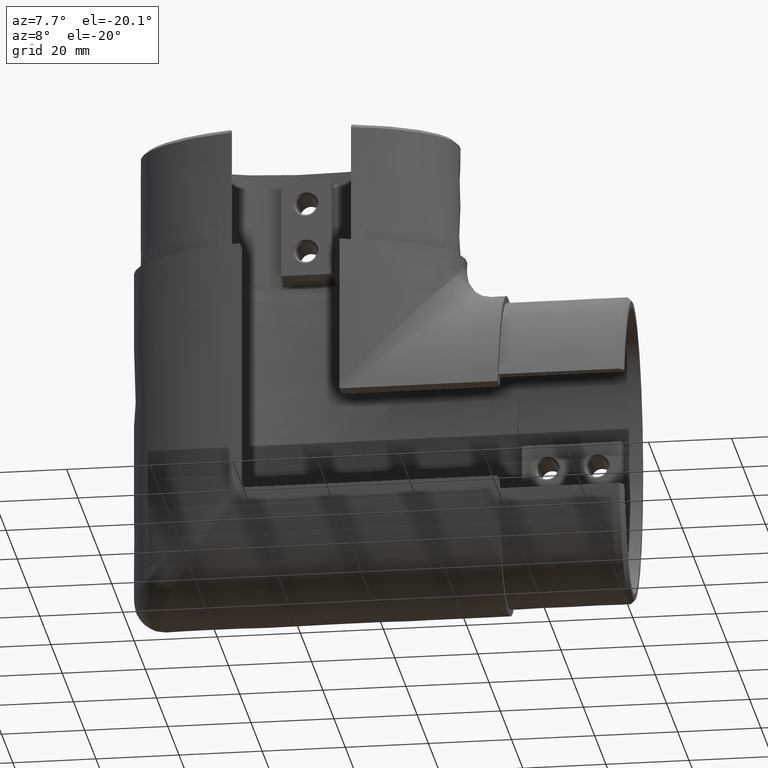
[diagram: clean part render]
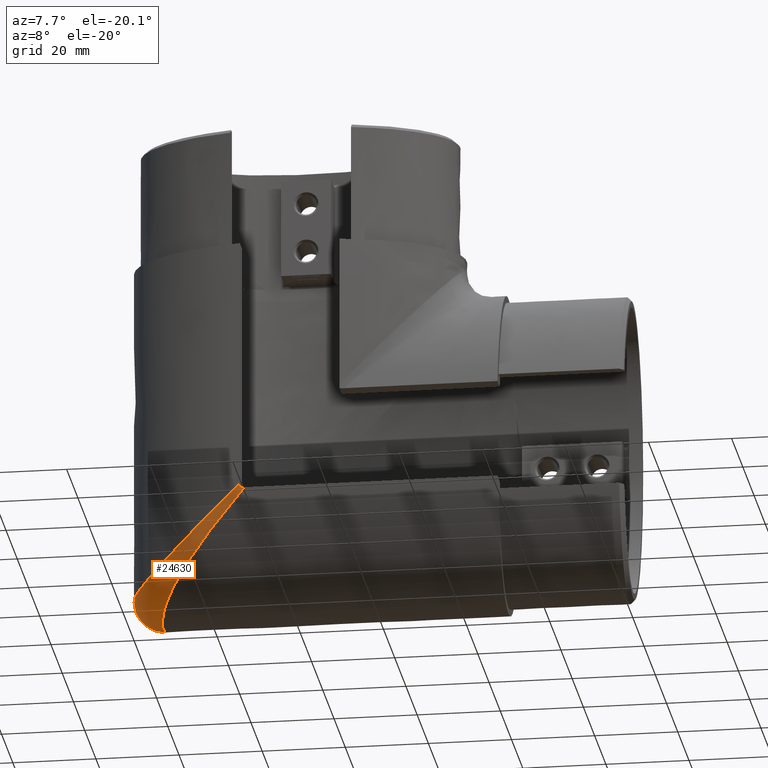
[diagram: same view with one face highlighted and labeled with its STEP entity id]
A machine part, auxiliary view. The second image highlights one B-rep face of the part: STEP entity #24630.
In plain terms, the highlighted face is a freeform B-spline surface patch.
Its self-contained STEP definition (entity closure, byte-faithful):
#169 = CARTESIAN_POINT ( 'NONE',  ( -29.37160239750422264, 9.523425862999179259, -83.77068820335664157 ) ) ;
#270 = CARTESIAN_POINT ( 'NONE',  ( -17.94219491825039725, 2.705763800402108732, -69.91868571629679252 ) ) ;
#393 = CARTESIAN_POINT ( 'NONE',  ( -33.23092805219116741, 32.15215143814275933, -83.23092805219891943 ) ) ;
#476 = CARTESIAN_POINT ( 'NONE',  ( -32.37455045395733322, 26.12924211060121138, -88.51979547736051757 ) ) ;
#497 = CARTESIAN_POINT ( 'NONE',  ( 1.850348682839927049E-14, 41.13217401979662213, -49.99999999999998579 ) ) ;
#580 = CARTESIAN_POINT ( 'NONE',  ( -0.3648939090101966931, 41.13139950329173899, -50.40097201730318233 ) ) ;
#601 = CARTESIAN_POINT ( 'NONE',  ( -30.16572828181829991, 30.62771880413700387, -84.89585378410696137 ) ) ;
#709 = CARTESIAN_POINT ( 'NONE',  ( -34.51139967667753439, 30.97050898847774647, -79.89678507337249869 ) ) ;
#811 = CARTESIAN_POINT ( 'NONE',  ( -17.62922851760139054, 38.52487797168041794, -69.56401797714006818 ) ) ;
#911 = CARTESIAN_POINT ( 'NONE',  ( -39.04081238698399403, 25.06209832524363890, -82.62071912275119701 ) ) ;
#986 = CARTESIAN_POINT ( 'NONE',  ( -0.1811295232113837028, 41.13217401979660792, -50.19903832828006784 ) ) ;
#1008 = CARTESIAN_POINT ( 'NONE',  ( -39.97966877540382313, 19.83449702947601523, -82.99317089946407577 ) ) ;
#1112 = CARTESIAN_POINT ( 'NONE',  ( -39.56629020501526384, 23.62826459583518002, -82.84270938261339268 ) ) ;
#1210 = CARTESIAN_POINT ( 'NONE',  ( -39.31686578052323711, 16.47307598796575689, -89.31686578052678271 ) ) ;
#1317 = CARTESIAN_POINT ( 'NONE',  ( -33.00060354281875163, 20.84099581621718400, -90.00178546724602313 ) ) ;
#1421 = CARTESIAN_POINT ( 'NONE',  ( -38.42784541487047534, 14.84633139395912238, -82.32709548702983682 ) ) ;
#1465 = VERTEX_POINT ( 'NONE', #27838 ) ;
#1533 = CARTESIAN_POINT ( 'NONE',  ( -39.19827333871958075, 16.43930249700422408, -82.69018528212768615 ) ) ;
#1637 = CARTESIAN_POINT ( 'NONE',  ( -33.20855871578069696, 8.963666559897875530, -83.20855871578845608 ) ) ;
#1744 = CARTESIAN_POINT ( 'NONE',  ( -34.49036876502517401, 10.14328450618595134, -79.88195212470995443 ) ) ;
#1847 = CARTESIAN_POINT ( 'NONE',  ( -30.60926402901077736, 7.240619044806872573, -80.60926402902936161 ) ) ;
#1955 = CARTESIAN_POINT ( 'NONE',  ( -17.20408985455200579, 1.982818971264354913, -65.54141347322295985 ) ) ;
#1972 = CARTESIAN_POINT ( 'NONE',  ( -33.91472836795607293, 31.49148173427529684, -79.47592381270435169 ) ) ;
#2054 = CARTESIAN_POINT ( 'NONE',  ( -10.91565564693311607, 0.9532233149745173995, -62.03665277998614869 ) ) ;
#2071 = CARTESIAN_POINT ( 'NONE',  ( -36.02914380681530560, 29.50924034914482164, -80.92614263881293368 ) ) ;
#2151 = CARTESIAN_POINT ( 'NONE',  ( -12.09459169784025256, 1.177897274943375150, -63.34789746435040314 ) ) ;
#2171 = CARTESIAN_POINT ( 'NONE',  ( -33.85466138596509467, 9.591507237139241582, -79.43251182193333193 ) ) ;
#2254 = CARTESIAN_POINT ( 'NONE',  ( -15.09858855077116502, 1.517347304243215511, -63.66337607641586516 ) ) ;
#2269 = CARTESIAN_POINT ( 'NONE',  ( -37.57740007699788976, 13.50367389920451977, -81.87149421041522146 ) ) ;
#2547 = CARTESIAN_POINT ( 'NONE',  ( -29.89221666812099443, 10.12763324558806310, -84.49611002315636199 ) ) ;
#2645 = CARTESIAN_POINT ( 'NONE',  ( -32.85998984907008236, 17.70354964169638379, -89.61405175343371354 ) ) ;
#2765 = CARTESIAN_POINT ( 'NONE',  ( -26.77010405059208509, 35.88822515534261015, -76.77010405057795595 ) ) ;
#2848 = CARTESIAN_POINT ( 'NONE',  ( -31.93564227944665390, 27.46605823269420199, -87.69137125230790275 ) ) ;
#2872 = CARTESIAN_POINT ( 'NONE',  ( -32.84524809203557538, 32.43000335728671502, -82.84524809205277052 ) ) ;
#2981 = CARTESIAN_POINT ( 'NONE',  ( -34.02708478669665482, 31.54414221480330482, -84.02708478668873227 ) ) ;
#3056 = CARTESIAN_POINT ( 'NONE',  ( -30.03403655376700598, 30.82745638889179673, -84.69774261681634187 ) ) ;
#3079 = CARTESIAN_POINT ( 'NONE',  ( -35.67309758234094375, 29.87935133326551096, -80.69284217131334458 ) ) ;
#3156 = CARTESIAN_POINT ( 'NONE',  ( -30.74024813607496753, 29.80400641231721082, -85.74547310364559394 ) ) ;
#3177 = CARTESIAN_POINT ( 'NONE',  ( -32.61450788970170578, 32.48977594379601896, -78.51461582321454102 ) ) ;
#3267 = EDGE_CURVE ( 'NONE', #28889, #11348, #27279, .T. ) ;
#3280 = CARTESIAN_POINT ( 'NONE',  ( -36.66356500532854312, 28.79279931274754745, -81.32678971337386997 ) ) ;
#3376 = CARTESIAN_POINT ( 'NONE',  ( -39.45761729215535496, 16.89378547914623141, -89.45761729215297464 ) ) ;
#3475 = CARTESIAN_POINT ( 'NONE',  ( -31.44916719787492454, 28.55478987454072737, -86.86276269141247042 ) ) ;
#3579 = CARTESIAN_POINT ( 'NONE',  ( -39.68448598893267842, 17.97335778896869485, -82.88707428398279831 ) ) ;
#3684 = CARTESIAN_POINT ( 'NONE',  ( -29.89135593134285784, 6.827074634972580824, -79.89135593134915325 ) ) ;
#3695 = CARTESIAN_POINT ( 'NONE',  ( -11.62822625777462804, 0.9633370565237928673, -62.00000000000000000 ) ) ;
#3786 = CARTESIAN_POINT ( 'NONE',  ( -33.72809944152889727, 9.503475950359932867, -79.33593231378314670 ) ) ;
#3893 = CARTESIAN_POINT ( 'NONE',  ( -36.45556949413983716, 11.82258619158715618, -86.45556949413985137 ) ) ;
#4000 = CARTESIAN_POINT ( 'NONE',  ( -36.03670639335778247, 11.62709299525353224, -80.93206794024231954 ) ) ;
#4108 = CARTESIAN_POINT ( 'NONE',  ( -29.88195212471540785, 10.14328450619074573, -84.49036876503087967 ) ) ;
#4126 = CARTESIAN_POINT ( 'NONE',  ( -8.008988384745348910, 40.73346427323605923, -57.27908234462238113 ) ) ;
#4213 = CARTESIAN_POINT ( 'NONE',  ( -10.89599044137086459, 0.9494460918177934916, -62.01333202652021015 ) ) ;
#4234 = CARTESIAN_POINT ( 'NONE',  ( -39.80141946894968186, 22.68290777836187644, -82.93064573102557802 ) ) ;
#4324 = CARTESIAN_POINT ( 'NONE',  ( -12.03665277998623218, 0.9532233149745326095, -60.91565564693328128 ) ) ;
#4339 = CARTESIAN_POINT ( 'NONE',  ( -36.63968267295188497, 12.26778480872566135, -81.32193179355775214 ) ) ;
#4422 = CARTESIAN_POINT ( 'NONE',  ( -16.39948551964426571, 1.787738698475009658, -66.39948551963648526 ) ) ;
#4439 = CARTESIAN_POINT ( 'NONE',  ( -32.43962188889521059, 32.61760134414419099, -78.38318634537463936 ) ) ;
#4518 = CARTESIAN_POINT ( 'NONE',  ( -11.54582768623722622, 0.8730850580782637538, -61.54582768623721023 ) ) ;
#4535 = CARTESIAN_POINT ( 'NONE',  ( -29.32278163111219982, 6.523902473909981126, -75.94719830847296294 ) ) ;
#4610 = CARTESIAN_POINT ( 'NONE',  ( -10.83699329175412274, 0.9399066433611038551, -61.95433487690296204 ) ) ;
#4629 = CARTESIAN_POINT ( 'NONE',  ( -37.63769755436764797, 27.54293855164729621, -81.90550511972232073 ) ) ;
#5007 = EDGE_LOOP ( 'NONE', ( #28168, #29018, #26557, #25875 ) ) ;
#5010 = CARTESIAN_POINT ( 'NONE',  ( -32.93044982213083216, 18.50286333941665262, -89.80167506870060379 ) ) ;
#5032 = CARTESIAN_POINT ( 'NONE',  ( -12.00000000000000178, 0.9633370565237869831, -61.62822625777463514 ) ) ;
#5034 = CARTESIAN_POINT ( 'NONE',  ( -24.71678194520332994, 36.76512261443867402, -74.71678194521905425 ) ) ;
#5103 = CARTESIAN_POINT ( 'NONE',  ( -27.37588189994114174, 7.653089277975095861, -81.13816859252322899 ) ) ;
#5126 = CARTESIAN_POINT ( 'NONE',  ( -13.94269230281235750, 39.90779653168854679, -62.63857332199353323 ) ) ;
#5228 = CARTESIAN_POINT ( 'NONE',  ( -23.18336157325120439, 36.20262638554734735, -75.99918604884608442 ) ) ;
#5333 = CARTESIAN_POINT ( 'NONE',  ( -23.79074184983086582, 35.87830717298501781, -76.72190019377485726 ) ) ;
#5432 = CARTESIAN_POINT ( 'NONE',  ( -10.12706748559100056, 40.37040074349170737, -61.15588215952629270 ) ) ;
#5532 = CARTESIAN_POINT ( 'NONE',  ( -39.38702744938237288, 24.54636310236407581, -89.38702744937461375 ) ) ;
#5629 = CARTESIAN_POINT ( 'NONE',  ( -32.13580806978345805, 26.90292922185659563, -88.05997654222586846 ) ) ;
#5726 = CARTESIAN_POINT ( 'NONE',  ( -39.98713105053541739, 21.18286761011225394, -82.99569791494342041 ) ) ;
#5824 = CARTESIAN_POINT ( 'NONE',  ( -32.99317089946092807, 19.83449702947447690, -89.97966877540368102 ) ) ;
#5836 = CARTESIAN_POINT ( 'NONE',  ( -11.99999999999999822, 0.9950123131499516438, -62.00000000000000000 ) ) ;
#5928 = CARTESIAN_POINT ( 'NONE',  ( -32.44047243655206358, 25.86825081934996007, -88.65624320076612719 ) ) ;
#6032 = CARTESIAN_POINT ( 'NONE',  ( -37.24405058852124739, 12.74253318050487138, -87.24405058851648675 ) ) ;
#6138 = CARTESIAN_POINT ( 'NONE',  ( -29.26334983900852293, 6.535083464551894927, -75.88486166111295006 ) ) ;
#6251 = CARTESIAN_POINT ( 'NONE',  ( -35.72502892500333616, 11.06043248735665507, -85.72502892500335747 ) ) ;
#6343 = CARTESIAN_POINT ( 'NONE',  ( -11.99999999999999822, 0.9950123131499516438, -62.00000000000000000 ) ) ;
#6354 = CARTESIAN_POINT ( 'NONE',  ( -39.01198604574948803, 16.00472739711403136, -82.60769664166556936 ) ) ;
#6370 = CARTESIAN_POINT ( 'NONE',  ( -1.602361235934478989, 41.13217401979662213, -51.45818611542073029 ) ) ;
#6458 = CARTESIAN_POINT ( 'NONE',  ( -32.01086347480866579, 13.87704543621973485, -87.82980140131465419 ) ) ;
#6575 = CARTESIAN_POINT ( 'NONE',  ( -12.79691044067856609, 40.07098758496690749, -61.60226912038931602 ) ) ;
#6662 = CARTESIAN_POINT ( 'NONE',  ( -11.52503011484736817, 0.8698742952079040469, -61.52503011484714790 ) ) ;
#6675 = CARTESIAN_POINT ( 'NONE',  ( -37.92907796558070999, 27.11468821869712897, -82.06654954120003254 ) ) ;
#6760 = CARTESIAN_POINT ( 'NONE',  ( -10.79766185867564587, 0.9335470110566632673, -61.91500344382491505 ) ) ;
#6778 = CARTESIAN_POINT ( 'NONE',  ( -36.70066744952242033, 28.75565803866341952, -81.35146637299848749 ) ) ;
#6858 = CARTESIAN_POINT ( 'NONE',  ( -21.42374719597654220, 3.178437589769589788, -69.25787755913270871 ) ) ;
#6872 = CARTESIAN_POINT ( 'NONE',  ( -15.98032334950099198, 1.707172966152271876, -64.45071548501631753 ) ) ;
#6957 = CARTESIAN_POINT ( 'NONE',  ( -11.15161006051183890, 0.9960395502483050389, -62.29879814681122951 ) ) ;
#6976 = CARTESIAN_POINT ( 'NONE',  ( -13.59322553183605642, 1.222741007880903785, -62.31479781539455587 ) ) ;
#7164 = CARTESIAN_POINT ( 'NONE',  ( -20.66966345015987017, 3.730542604132854212, -73.04896389096141718 ) ) ;
#7282 = CARTESIAN_POINT ( 'NONE',  ( 2.643355261199895784E-14, 41.13217401979662213, -49.99999999999998579 ) ) ;
#7356 = CARTESIAN_POINT ( 'NONE',  ( -32.99665937460857634, 19.85341118685581563, -89.99012154584413281 ) ) ;
#7378 = CARTESIAN_POINT ( 'NONE',  ( -30.95158504682437695, 29.47338552630029440, -86.06671039069989604 ) ) ;
#7452 = CARTESIAN_POINT ( 'NONE',  ( -32.77439368960905597, 24.16148297454403249, -89.39751996460647376 ) ) ;
#7472 = CARTESIAN_POINT ( 'NONE',  ( -16.38428478281815615, 38.90914629633980582, -68.15462139262555752 ) ) ;
#7556 = CARTESIAN_POINT ( 'NONE',  ( -28.25500981135822087, 8.414442851112605481, -82.27713643666021426 ) ) ;
#7577 = CARTESIAN_POINT ( 'NONE',  ( -34.44038936600720291, 31.21170400485591756, -84.44038936600712475 ) ) ;
#7578 = B_SPLINE_CURVE_WITH_KNOTS ( 'NONE', 3,
 ( #16558, #14409, #23510, #28303, #270, #7164, #9502, #25866, #14216, #5103, #26156, #7556, #23605, #169, #2547, #9910, #21259, #28612, #9603, #14621, #11973, #23703, #21549, #16659, #2645, #19007, #5010, #21353, #7356, #21454, #12169, #9703, #16764, #7452, #28509, #26261, #476, #16869, #2848, #19205, #23905, #29019, #3156, #3056, #12475, #24408, #22048, #14917, #12377, #26570, #21758, #26369, #7766, #21859, #19696, #8047, #26667, #17362, #12761, #24115, #24215, #15018, #28923, #17272, #19312, #29114, #10015, #580, #986, #28719 ),
 .UNSPECIFIED., .F., .F.,
 ( 4, 2, 2, 2, 2, 2, 2, 2, 2, 2, 2, 2, 2, 2, 2, 2, 2, 2, 2, 2, 2, 2, 2, 2, 2, 2, 2, 2, 2, 2, 2, 2, 2, 2, 4 ),
 ( -5.999999999439605113E-08, 0.006458756821168885887, 0.01291757364233776621, 0.01937639046350664654, 0.02583520728467552860, 0.02744991148996773697, 0.02906461569525994534, 0.03229402410584432392, 0.03552343251642871291, 0.03713813672172090741, 0.03875284092701309496, 0.04036754513230529640, 0.04117489723495138670, 0.04198224933759747007, 0.04359695354288965069, 0.04521165774818183131, 0.04682636195347401192, 0.04844106615876619254, 0.05005577036405837316, 0.05167047456935055377, 0.05328517877464272051, 0.05489988297993490113, 0.05812929139051926236, 0.06135869980110362359, 0.06458810821168797789, 0.07104692503285670035, 0.07427633344344106159, 0.07750574185402540894, 0.08396455867519413141, 0.09042337549636285388, 0.09688219231753157634, 0.1001116007281159376, 0.1017263049334081182, 0.1025336570360542016, 0.1033410091387002711 ),
 .UNSPECIFIED. ) ;
#7680 = CARTESIAN_POINT ( 'NONE',  ( -12.00000000000000355, 0.9472903914045059937, -60.88265841485083740 ) ) ;
#7682 = CARTESIAN_POINT ( 'NONE',  ( 1.057342104479958156E-14, 41.13217401979662213, -49.99999999999998579 ) ) ;
#7766 = CARTESIAN_POINT ( 'NONE',  ( -20.07781726675344558, 37.62218312017288468, -72.37014623858146933 ) ) ;
#7789 = CARTESIAN_POINT ( 'NONE',  ( -17.30153402800277362, 39.13039070537388397, -67.30153402796854323 ) ) ;
#7888 = CARTESIAN_POINT ( 'NONE',  ( -32.95452690602677137, 18.87105691384126516, -89.86831673376899232 ) ) ;
#7980 = CARTESIAN_POINT ( 'NONE',  ( -32.91269074333918354, 18.26452304445670549, -89.75314880035980991 ) ) ;
#8047 = CARTESIAN_POINT ( 'NONE',  ( -15.90031808927982659, 39.05618944342553789, -67.60657191550461675 ) ) ;
#8070 = CARTESIAN_POINT ( 'NONE',  ( -39.75314880035904963, 18.26452304445276908, -82.91269074333681033 ) ) ;
#8168 =( BOUNDED_SURFACE ( )  B_SPLINE_SURFACE ( 3, 2, ( 
 ( #7282, #497, #7682 ),
 ( #19334, #12398, #12092 ),
 ( #23926, #19226, #12295 ),
 ( #5432, #26281, #21780 ),
 ( #24034, #21473, #5126 ),
 ( #7472, #7789, #12500 ),
 ( #811, #16785, #24139 ),
 ( #17196, #28634, #14845 ),
 ( #9823, #23829, #19132 ),
 ( #5228, #5034, #10036 ),
 ( #5333, #10138, #14748 ),
 ( #28742, #2765, #9727 ),
 ( #16993, #16891, #26178 ),
 ( #28426, #19431, #12188 ),
 ( #28536, #26496, #26394 ),
 ( #21680, #28844, #3177 ),
 ( #14539, #14645, #21575 ),
 ( #14433, #2872, #709 ),
 ( #601, #393, #21377 ),
 ( #17092, #2981, #3079 ),
 ( #7378, #7577, #23724 ),
 ( #26080, #9934, #3280 ),
 ( #3475, #29139, #12785 ),
 ( #19528, #19920, #14940 ),
 ( #12691, #15042, #29240 ),
 ( #8267, #17386, #15231 ),
 ( #5629, #22070, #26880 ),
 ( #24633, #24238, #12989 ),
 ( #5928, #22268, #26593 ),
 ( #15133, #10334, #911 ),
 ( #12885, #10430, #10640 ),
 ( #19720, #12592, #1112 ),
 ( #10238, #5532, #26986 ),
 ( #17479, #29347, #15331 ),
 ( #24433, #26689, #24335 ),
 ( #21977, #17584, #5726 ),
 ( #1317, #17682, #19819 ),
 ( #29040, #26785, #19622 ),
 ( #5824, #22166, #1008 ),
 ( #28947, #21882, #8171 ),
 ( #7888, #24532, #17294 ),
 ( #7980, #3376, #8070 ),
 ( #10530, #1210, #3579 ),
 ( #13415, #13212, #20454 ),
 ( #29883, #10961, #13518 ),
 ( #8490, #17895, #1533 ),
 ( #11069, #18099, #6354 ),
 ( #15648, #15855, #8804 ),
 ( #27514, #6032, #1421 ),
 ( #10743, #8697, #27411 ),
 ( #6458, #3893, #20239 ),
 ( #25158, #6251, #15754 ),
 ( #25055, #24848, #29782 ),
 ( #13315, #27306, #4000 ),
 ( #10849, #17787, #22374 ),
 ( #29674, #1637, #20027 ),
 ( #4108, #29455, #1744 ),
 ( #29561, #22797, #3786 ),
 ( #22586, #11174, #22485 ),
 ( #8595, #1847, #8378 ),
 ( #24737, #3684, #27099 ),
 ( #13101, #15441, #17999 ),
 ( #20139, #27206, #6138 ),
 ( #15542, #24951, #20348 ),
 ( #22697, #28007, #18411 ),
 ( #15957, #9097, #30089 ),
 ( #9200, #9000, #6858 ),
 ( #25363, #23007, #30279 ),
 ( #16254, #4422, #1955 ),
 ( #14015, #18509, #2254 ),
 ( #23108, #18313, #25559 ),
 ( #2151, #27819, #11479 ),
 ( #18207, #18604, #13625 ),
 ( #11378, #13728, #27909 ),
 ( #6957, #16055, #13924 ),
 ( #29990, #4518, #30184 ),
 ( #27716, #6662, #27616 ),
 ( #2054, #23198, #4324 ),
 ( #4213, #20757, #13826 ),
 ( #4610, #11576, #20852 ),
 ( #6760, #25271, #16157 ),
 ( #20559, #20658, #25467 ),
 ( #20950, #23299, #9296 ),
 ( #25661, #11668, #30376 ) ),
 .UNSPECIFIED., .F., .F., .F. ) 
 B_SPLINE_SURFACE_WITH_KNOTS ( ( 4, 2, 2, 2, 2, 2, 2, 2, 2, 2, 2, 2, 2, 2, 2, 2, 2, 2, 2, 2, 2, 2, 2, 2, 2, 2, 2, 2, 2, 2, 2, 2, 2, 2, 2, 2, 2, 2, 2, 2, 2, 4 ),
 ( 3, 3 ),
 ( -5.321578008142049141E-05, 0.01067587909954016354, 0.02140497397916174896, 0.02676952141897254167, 0.03213406885878333091, 0.03481634257868872206, 0.03749861629859412016, 0.04018089001849951825, 0.04286316373840491634, 0.04420430059835761538, 0.04554543745831031443, 0.04621600588828666395, 0.04688657431826301347, 0.04755714274823936299, 0.04822771117821571252, 0.04889827960819206204, 0.04956884803816841156, 0.04990413225315658285, 0.05023941646814476109, 0.05057470068313293932, 0.05090998489812111061, 0.05124526911310928190, 0.05158055332809746013, 0.05225112175807380965, 0.05292169018805015224, 0.05359225861802650176, 0.05493339547797919387, 0.05627453233793189291, 0.05761566919788459196, 0.05895680605783729100, 0.06163907977774268909, 0.06432135349764808718, 0.06968590093745888336, 0.07505044837726967955, 0.08041499581708047573, 0.08309726953698587382, 0.08443840639693855898, 0.08510897482691490157, 0.08519279588066194786, 0.08527661693440899415, 0.08544425904190308674, 0.08577954325689125803 ),
 ( 0.000000000000000000, 1.000000000000000000 ),
 .UNSPECIFIED. ) 
 GEOMETRIC_REPRESENTATION_ITEM ( )  RATIONAL_B_SPLINE_SURFACE ( (
 ( 1.000000000000000000, 1.000000000000000000, 1.000000000000000000),
 ( 1.000000000000000000, 1.000000000000000000, 1.000000000000000000),
 ( 1.000000000000000000, 0.9990690593646712747, 1.000000000000000000),
 ( 1.000000000000000000, 0.9949428470493216770, 1.000000000000000000),
 ( 1.000000000000000000, 0.9917955206340531848, 1.000000000000000000),
 ( 1.000000000000000000, 0.9840084595926974487, 1.000000000000000000),
 ( 1.000000000000000000, 0.9808903825552540701, 1.000000000000000000),
 ( 1.000000000000000000, 0.9729683107988887913, 1.000000000000000000),
 ( 1.000000000000000000, 0.9681719544900275753, 1.000000000000000000),
 ( 1.000000000000000000, 0.9587621206546954600, 1.000000000000000000),
 ( 1.000000000000000000, 0.9552498486195337701, 1.000000000000000000),
 ( 1.000000000000000000, 0.9471422423816547864, 1.000000000000000000),
 ( 1.000000000000000000, 0.9425529158774901273, 1.000000000000000000),
 ( 1.000000000000000000, 0.9317210509088722503, 1.000000000000000000),
 ( 1.000000000000000000, 0.9254828206770623344, 1.000000000000000000),
 ( 1.000000000000000000, 0.9104062270925082911, 1.000000000000000000),
 ( 1.000000000000000000, 0.9015999596851438369, 1.000000000000000000),
 ( 1.000000000000000000, 0.8847931660948379351, 1.000000000000000000),
 ( 1.000000000000000000, 0.8785801853915479187, 1.000000000000000000),
 ( 1.000000000000000000, 0.8643603937544185323, 1.000000000000000000),
 ( 1.000000000000000000, 0.8563444517905696163, 1.000000000000000000),
 ( 1.000000000000000000, 0.8422906019984875980, 1.000000000000000000),
 ( 1.000000000000000000, 0.8372835339722340953, 1.000000000000000000),
 ( 1.000000000000000000, 0.8264709740642149916, 1.000000000000000000),
 ( 1.000000000000000000, 0.8206653869669456869, 1.000000000000000000),
 ( 1.000000000000000000, 0.8080640823828902919, 1.000000000000000000),
 ( 1.000000000000000000, 0.8012663964096378155, 1.000000000000000000),
 ( 1.000000000000000000, 0.7864728855320435308, 1.000000000000000000),
 ( 1.000000000000000000, 0.7784194025341688583, 1.000000000000000000),
 ( 1.000000000000000000, 0.7613093711383547291, 1.000000000000000000),
 ( 1.000000000000000000, 0.7522253369712769144, 1.000000000000000000),
 ( 1.000000000000000000, 0.7340928947645425362, 1.000000000000000000),
 ( 1.000000000000000000, 0.7249838178581089476, 1.000000000000000000),
 ( 1.000000000000000000, 0.7146995702675384976, 1.000000000000000000),
 ( 1.000000000000000000, 0.7118468781692527392, 1.000000000000000000),
 ( 1.000000000000000000, 0.7079764405757438261, 1.000000000000000000),
 ( 1.000000000000000000, 0.7069873933459852600, 1.000000000000000000),
 ( 1.000000000000000000, 0.7072502765058953367, 1.000000000000000000),
 ( 1.000000000000000000, 0.7084744992046980716, 1.000000000000000000),
 ( 1.000000000000000000, 0.7127195486894121190, 1.000000000000000000),
 ( 1.000000000000000000, 0.7157278919499835412, 1.000000000000000000),
 ( 1.000000000000000000, 0.7228820703814876625, 1.000000000000000000),
 ( 1.000000000000000000, 0.7270228682332322556, 1.000000000000000000),
 ( 1.000000000000000000, 0.7356348277942129643, 1.000000000000000000),
 ( 1.000000000000000000, 0.7401299963774917723, 1.000000000000000000),
 ( 1.000000000000000000, 0.7536486516953473380, 1.000000000000000000),
 ( 1.000000000000000000, 0.7626657460926293819, 1.000000000000000000),
 ( 1.000000000000000000, 0.7796844110532500371, 1.000000000000000000),
 ( 1.000000000000000000, 0.7876288588484450237, 1.000000000000000000),
 ( 1.000000000000000000, 0.8023122730536667024, 1.000000000000000000),
 ( 1.000000000000000000, 0.8090779462969549529, 1.000000000000000000),
 ( 1.000000000000000000, 0.8279227977736420829, 1.000000000000000000),
 ( 1.000000000000000000, 0.8385346342444187639, 1.000000000000000000),
 ( 1.000000000000000000, 0.8569779081051873693, 1.000000000000000000),
 ( 1.000000000000000000, 0.8648737633569623107, 1.000000000000000000),
 ( 1.000000000000000000, 0.8789503798620865727, 1.000000000000000000),
 ( 1.000000000000000000, 0.8851221087473345461, 1.000000000000000000),
 ( 1.000000000000000000, 0.8962712115423278059, 1.000000000000000000),
 ( 1.000000000000000000, 0.9012443698415995019, 1.000000000000000000),
 ( 1.000000000000000000, 0.9148583174941072871, 1.000000000000000000),
 ( 1.000000000000000000, 0.9222125764944059112, 1.000000000000000000),
 ( 1.000000000000000000, 0.9348094086503596634, 1.000000000000000000),
 ( 1.000000000000000000, 0.9400673460042433538, 1.000000000000000000),
 ( 1.000000000000000000, 0.9539082886206354805, 1.000000000000000000),
 ( 1.000000000000000000, 0.9606110467608137693, 1.000000000000000000),
 ( 1.000000000000000000, 0.9716549880059903721, 1.000000000000000000),
 ( 1.000000000000000000, 0.9759337527893803266, 1.000000000000000000),
 ( 1.000000000000000000, 0.9830718741892712220, 1.000000000000000000),
 ( 1.000000000000000000, 0.9859163936864532296, 1.000000000000000000),
 ( 1.000000000000000000, 0.9894651779287677584, 1.000000000000000000),
 ( 1.000000000000000000, 0.9905249608253907656, 1.000000000000000000),
 ( 1.000000000000000000, 0.9919602681888908258, 1.000000000000000000),
 ( 1.000000000000000000, 0.9924128703287788955, 1.000000000000000000),
 ( 1.000000000000000000, 0.9930559940057798185, 1.000000000000000000),
 ( 1.000000000000000000, 0.9932644002757504698, 1.000000000000000000),
 ( 1.000000000000000000, 0.9934923898730588787, 1.000000000000000000),
 ( 1.000000000000000000, 0.9935176322023198114, 1.000000000000000000),
 ( 1.000000000000000000, 0.9935679379839263969, 1.000000000000000000),
 ( 1.000000000000000000, 0.9936099293254090359, 1.000000000000000000),
 ( 1.000000000000000000, 0.9936099293254090359, 1.000000000000000000),
 ( 1.000000000000000000, 0.9936099293254090359, 1.000000000000000000),
 ( 1.000000000000000000, 0.9936099293254090359, 1.000000000000000000),
 ( 1.000000000000000000, 0.9936099293254090359, 1.000000000000000000),
 ( 1.000000000000000000, 0.9936099293254090359, 1.000000000000000000) ) ) 
 REPRESENTATION_ITEM ( '' )  SURFACE ( )  );
#8171 = CARTESIAN_POINT ( 'NONE',  ( -39.91485023728090198, 19.18615524129085159, -82.97079418071049872 ) ) ;
#8267 = CARTESIAN_POINT ( 'NONE',  ( -32.02765229720778706, 27.20925074332239291, -87.86038148847194407 ) ) ;
#8378 = CARTESIAN_POINT ( 'NONE',  ( -32.21661883499819368, 8.357079570196232154, -78.21383039610098820 ) ) ;
#8490 = CARTESIAN_POINT ( 'NONE',  ( -32.69018528212533425, 16.43930249700439816, -89.19827333871963049 ) ) ;
#8595 = CARTESIAN_POINT ( 'NONE',  ( -28.21383039607752607, 8.357079570197926799, -82.21661883500047452 ) ) ;
#8697 = CARTESIAN_POINT ( 'NONE',  ( -36.71048644561464158, 12.10322207084790058, -86.71048644561933827 ) ) ;
#8804 = CARTESIAN_POINT ( 'NONE',  ( -38.62587437852202044, 15.20600637121015275, -82.42566905692567047 ) ) ;
#8821 = CARTESIAN_POINT ( 'NONE',  ( -12.39966034306676690, 1.011912822616905627, -61.24246712462140607 ) ) ;
#8905 = CARTESIAN_POINT ( 'NONE',  ( 4.850618260777534675E-14, 41.13217401979662213, -49.99999999999995737 ) ) ;
#8922 = CARTESIAN_POINT ( 'NONE',  ( -39.65161452066957537, 17.80763711302537544, -82.87574322131149529 ) ) ;
#9000 = CARTESIAN_POINT ( 'NONE',  ( -20.39905506798498180, 2.847215021813865210, -70.39905506798184831 ) ) ;
#9016 = CARTESIAN_POINT ( 'NONE',  ( -38.42309911190736216, 14.82917135175865297, -82.32606258337386862 ) ) ;
#9097 = CARTESIAN_POINT ( 'NONE',  ( -21.73386406271925608, 3.266909114878552955, -71.73386406272848603 ) ) ;
#9116 = CARTESIAN_POINT ( 'NONE',  ( -38.72515587058033759, 25.74133976001709811, -82.47439555788929511 ) ) ;
#9200 = CARTESIAN_POINT ( 'NONE',  ( -19.25787755912342192, 3.178437589760692905, -71.42374719594660348 ) ) ;
#9217 = CARTESIAN_POINT ( 'NONE',  ( -38.47216916619592553, 26.21546238806979900, -82.35075308921918236 ) ) ;
#9296 = CARTESIAN_POINT ( 'NONE',  ( -11.71834627843485954, 0.9017488495344925248, -60.60100469328440198 ) ) ;
#9502 = CARTESIAN_POINT ( 'NONE',  ( -22.00806171574481596, 4.317093777837254898, -74.60476838036217373 ) ) ;
#9526 = CARTESIAN_POINT ( 'NONE',  ( -12.00000000000000355, 0.9472903914045067708, -61.25578501473233217 ) ) ;
#9603 = CARTESIAN_POINT ( 'NONE',  ( -32.00182333436755044, 13.83918734843740239, -87.81074789265623792 ) ) ;
#9703 = CARTESIAN_POINT ( 'NONE',  ( -32.93800527943387380, 22.57929667908588911, -89.82182474557208707 ) ) ;
#9727 = CARTESIAN_POINT ( 'NONE',  ( -28.17479013772045704, 35.17360693452396703, -74.99623289534777371 ) ) ;
#9823 = CARTESIAN_POINT ( 'NONE',  ( -21.34949585569897224, 37.10890297751637235, -73.83759022703972619 ) ) ;
#9910 = CARTESIAN_POINT ( 'NONE',  ( -30.84482037821767975, 11.45848509081981703, -85.89406581451490297 ) ) ;
#9934 = CARTESIAN_POINT ( 'NONE',  ( -35.08827157706737410, 30.64813472320366117, -85.08827157706733146 ) ) ;
#10015 = CARTESIAN_POINT ( 'NONE',  ( -0.7300757236950468076, 41.12829586400758330, -50.80227031598058574 ) ) ;
#10036 = CARTESIAN_POINT ( 'NONE',  ( -25.99918604884075890, 36.20262638554957135, -73.18336157326214675 ) ) ;
#10138 = CARTESIAN_POINT ( 'NONE',  ( -25.39909061798305245, 36.48689823239828911, -75.39909061799707501 ) ) ;
#10238 = CARTESIAN_POINT ( 'NONE',  ( -32.90090822541870352, 23.07074371422429948, -89.72004023440700848 ) ) ;
#10334 = CARTESIAN_POINT ( 'NONE',  ( -38.15853904373643246, 27.09425593238979602, -88.15853904373796013 ) ) ;
#10430 = CARTESIAN_POINT ( 'NONE',  ( -38.46643487597035715, 26.58580828938879037, -88.46643487596566047 ) ) ;
#10530 = CARTESIAN_POINT ( 'NONE',  ( -32.88707428398006272, 17.97335778896742653, -89.68448598893230894 ) ) ;
#10640 = CARTESIAN_POINT ( 'NONE',  ( -39.22671021605361119, 24.62195745592129015, -82.70249517752257873 ) ) ;
#10743 = CARTESIAN_POINT ( 'NONE',  ( -32.11979881429465422, 14.18208780023308435, -88.03006655002155867 ) ) ;
#10849 = CARTESIAN_POINT ( 'NONE',  ( -30.67537501316420290, 11.22644279582578619, -85.64685346431497237 ) ) ;
#10961 = CARTESIAN_POINT ( 'NONE',  ( -38.87281065488815557, 15.37950920351034689, -88.87281065488656395 ) ) ;
#11069 = CARTESIAN_POINT ( 'NONE',  ( -32.60769664166471671, 16.00472739711370096, -89.01198604574936724 ) ) ;
#11174 = CARTESIAN_POINT ( 'NONE',  ( -31.70071635350486972, 7.926866140265762084, -81.70071635349543726 ) ) ;
#11193 = CARTESIAN_POINT ( 'NONE',  ( -39.95257130274098500, 21.60393890276256457, -82.98384102053925915 ) ) ;
#11292 = CARTESIAN_POINT ( 'NONE',  ( -20.74148856736157853, 2.974364991633378530, -68.65929117286053440 ) ) ;
#11348 = VERTEX_POINT ( 'NONE', #17781 ) ;
#11378 = CARTESIAN_POINT ( 'NONE',  ( -11.30885597991353464, 1.025304862492369740, -62.47359431918618355 ) ) ;
#11395 = CARTESIAN_POINT ( 'NONE',  ( -13.99125778968826062, 1.297884835242250734, -62.67176231517673557 ) ) ;
#11479 = CARTESIAN_POINT ( 'NONE',  ( -13.34789746435161106, 1.177897274943601191, -62.09459169784414456 ) ) ;
#11497 = CARTESIAN_POINT ( 'NONE',  ( -17.56444729775969193, 39.06664195002985451, -65.86292339671892648 ) ) ;
#11576 = CARTESIAN_POINT ( 'NONE',  ( -11.40287300042412610, 0.8507389093153442383, -61.40287300042422913 ) ) ;
#11593 = CARTESIAN_POINT ( 'NONE',  ( -39.99689367753147451, 19.96230508119508684, -82.99894998287288672 ) ) ;
#11668 = CARTESIAN_POINT ( 'NONE',  ( -11.08822153579890646, 0.7998618508801789151, -61.08822153579890823 ) ) ;
#11973 = CARTESIAN_POINT ( 'NONE',  ( -32.42636855018410813, 15.19827558145661328, -88.62577977714597921 ) ) ;
#12092 = CARTESIAN_POINT ( 'NONE',  ( -2.797354872628095457, 41.13217401979661503, -52.54565830531673498 ) ) ;
#12169 = CARTESIAN_POINT ( 'NONE',  ( -32.99110861716636833, 21.49889789972390730, -89.97271574147403328 ) ) ;
#12188 = CARTESIAN_POINT ( 'NONE',  ( -30.37763977588102904, 33.95776858602447845, -76.77911198400015280 ) ) ;
#12295 = CARTESIAN_POINT ( 'NONE',  ( -5.582895214536237383, 40.98350502480607815, -55.08075637090281163 ) ) ;
#12377 = CARTESIAN_POINT ( 'NONE',  ( -26.02855514715817975, 34.50048666933523833, -79.44044503609792685 ) ) ;
#12398 = CARTESIAN_POINT ( 'NONE',  ( -2.671544045797475064, 41.13217401978413079, -52.67154404446792881 ) ) ;
#12475 = CARTESIAN_POINT ( 'NONE',  ( -29.51997356621750512, 31.44144826309845087, -83.97571817563603247 ) ) ;
#12500 = CARTESIAN_POINT ( 'NONE',  ( -18.15462139265491714, 38.90914629633283539, -66.38428478277316458 ) ) ;
#12592 = CARTESIAN_POINT ( 'NONE',  ( -39.07986576949319613, 25.31900196719177032, -89.07986576949801361 ) ) ;
#12691 = CARTESIAN_POINT ( 'NONE',  ( -31.80352191552985985, 27.78272236451952182, -87.46120398478190339 ) ) ;
#12761 = CARTESIAN_POINT ( 'NONE',  ( -10.18697693765141743, 40.32390636334600487, -61.22580576159452193 ) ) ;
#12785 = CARTESIAN_POINT ( 'NONE',  ( -36.86276269140987694, 28.55478987454400652, -81.44916719787806869 ) ) ;
#12875 = EDGE_CURVE ( 'NONE', #11348, #26135, #7578, .T. ) ;
#12885 = CARTESIAN_POINT ( 'NONE',  ( -32.70249517752811386, 24.62195745592106988, -89.22671021605368935 ) ) ;
#12989 = CARTESIAN_POINT ( 'NONE',  ( -38.45733017605803639, 26.23336884581216211, -82.34197086237566054 ) ) ;
#13101 = CARTESIAN_POINT ( 'NONE',  ( -26.47217329263946439, 6.945340124637892742, -79.99198476492303200 ) ) ;
#13212 = CARTESIAN_POINT ( 'NONE',  ( -39.02472124955709631, 15.71790107649381163, -89.02472124955355071 ) ) ;
#13315 = CARTESIAN_POINT ( 'NONE',  ( -30.93206794025638118, 11.62709299525694284, -86.03670639336078807 ) ) ;
#13415 = CARTESIAN_POINT ( 'NONE',  ( -32.82905588193838042, 17.42734435948340277, -89.53505046935045186 ) ) ;
#13518 = CARTESIAN_POINT ( 'NONE',  ( -39.45391757501213448, 17.17033590735487536, -82.79652991448898547 ) ) ;
#13538 = CARTESIAN_POINT ( 'NONE',  ( -37.87321489225882942, 13.93262026053651503, -82.03611872633604207 ) ) ;
#13625 = CARTESIAN_POINT ( 'NONE',  ( -12.99809034454848877, 1.115189716617811078, -61.78042909394783067 ) ) ;
#13641 = CARTESIAN_POINT ( 'NONE',  ( -30.15611290438299363, 34.09194136823886367, -76.60366945745397516 ) ) ;
#13728 = CARTESIAN_POINT ( 'NONE',  ( -11.89943010473070295, 0.9284413286915715879, -61.89943010473150053 ) ) ;
#13743 = CARTESIAN_POINT ( 'NONE',  ( -15.97732120369637876, 39.44065265407814991, -64.45020257170799027 ) ) ;
#13826 = CARTESIAN_POINT ( 'NONE',  ( -12.01333202652008580, 0.9494460918177737296, -60.89599044137084860 ) ) ;
#13842 = CARTESIAN_POINT ( 'NONE',  ( -31.60956891843001770, 7.948192928044991667, -77.74625613383271627 ) ) ;
#13924 = CARTESIAN_POINT ( 'NONE',  ( -12.29879814681120109, 0.9960395502482993768, -61.15161006051046400 ) ) ;
#13940 = CARTESIAN_POINT ( 'NONE',  ( -29.38127583861717440, 34.53338811625262395, -75.98073815624361771 ) ) ;
#14015 = CARTESIAN_POINT ( 'NONE',  ( -13.66337607640342178, 1.517347304240832750, -65.09858855076039674 ) ) ;
#14216 = CARTESIAN_POINT ( 'NONE',  ( -25.87428989988215022, 6.474981626057550343, -79.23298897902290605 ) ) ;
#14409 = CARTESIAN_POINT ( 'NONE',  ( -12.31286224051996747, 1.204158126702964626, -63.58861010466702623 ) ) ;
#14433 = CARTESIAN_POINT ( 'NONE',  ( -29.89678507335775137, 30.97050898847531997, -84.51139967668039787 ) ) ;
#14539 = CARTESIAN_POINT ( 'NONE',  ( -29.07741367175425040, 31.93354284284564315, -83.36657385962641342 ) ) ;
#14621 = CARTESIAN_POINT ( 'NONE',  ( -32.29770703981524349, 14.73131543190302040, -88.36724352647976843 ) ) ;
#14642 = CARTESIAN_POINT ( 'NONE',  ( -11.99999999999999822, 0.9950123131499516438, -62.00000000000000000 ) ) ;
#14645 = CARTESIAN_POINT ( 'NONE',  ( -31.72032503859201213, 33.20469909337175096, -81.72032503855808727 ) ) ;
#14748 = CARTESIAN_POINT ( 'NONE',  ( -26.72190019376607140, 35.87830717298928818, -73.79074184984337137 ) ) ;
#14845 = CARTESIAN_POINT ( 'NONE',  ( -22.40386068854715518, 37.62516294957151786, -70.11032326539030635 ) ) ;
#14917 = CARTESIAN_POINT ( 'NONE',  ( -26.65158087005800169, 34.05655280025546716, -80.21617917431983358 ) ) ;
#14940 = CARTESIAN_POINT ( 'NONE',  ( -37.26157443854612694, 28.04971426477668572, -81.68752906495535626 ) ) ;
#15018 = CARTESIAN_POINT ( 'NONE',  ( -3.649844991741945321, 41.03267859044554200, -54.01198752630508437 ) ) ;
#15042 = CARTESIAN_POINT ( 'NONE',  ( -36.00388556574894494, 29.78228327061352942, -86.00388556574506538 ) ) ;
#15133 = CARTESIAN_POINT ( 'NONE',  ( -32.62071912274966934, 25.06209832524337955, -89.04081238698408640 ) ) ;
#15214 = FACE_OUTER_BOUND ( 'NONE', #5007, .T. ) ;
#15231 = CARTESIAN_POINT ( 'NONE',  ( -37.86038148846893847, 27.20925074332669524, -82.02765229721249796 ) ) ;
#15331 = CARTESIAN_POINT ( 'NONE',  ( -39.88440558217679666, 22.15807515836547736, -82.96021454093653347 ) ) ;
#15441 = CARTESIAN_POINT ( 'NONE',  ( -28.48931508257399514, 6.073586840014246313, -78.48931508256782763 ) ) ;
#15542 = CARTESIAN_POINT ( 'NONE',  ( -24.10977380711142715, 5.399052631852996775, -77.09362070333024519 ) ) ;
#15554 = CARTESIAN_POINT ( 'NONE',  ( -11.25578501473231974, 0.9472903914045219809, -62.00000000000000000 ) ) ;
#15648 = CARTESIAN_POINT ( 'NONE',  ( -32.42566905692641654, 15.20600637121044230, -88.62587437852221228 ) ) ;
#15754 = CARTESIAN_POINT ( 'NONE',  ( -37.22783889451601880, 13.01858398956291474, -81.67163128920098814 ) ) ;
#15855 = CARTESIAN_POINT ( 'NONE',  ( -37.52473170736075758, 13.10368614423476075, -87.52473170736000441 ) ) ;
#15875 = CARTESIAN_POINT ( 'NONE',  ( -12.00000000000000355, 0.9472903914045059937, -60.88265841485083740 ) ) ;
#15957 = CARTESIAN_POINT ( 'NONE',  ( -20.48316387093241531, 3.655002966885887439, -72.83300692268473142 ) ) ;
#15976 = CARTESIAN_POINT ( 'NONE',  ( -19.94241702411542505, 38.39994368502654254, -67.95864778687761998 ) ) ;
#16055 = CARTESIAN_POINT ( 'NONE',  ( -11.73304014425306185, 0.9020723801167763733, -61.73304014425326613 ) ) ;
#16073 = CARTESIAN_POINT ( 'NONE',  ( -37.02351096058069402, 28.36343148751085508, -81.54795089306671230 ) ) ;
#16157 = CARTESIAN_POINT ( 'NONE',  ( -11.91500344382482091, 0.9335470110566493895, -60.79766185867575246 ) ) ;
#16172 = CARTESIAN_POINT ( 'NONE',  ( -40.00132189605535871, 20.78232607341516669, -83.00044683730804707 ) ) ;
#16254 = CARTESIAN_POINT ( 'NONE',  ( -15.54141347324782174, 1.982818971269125763, -67.20408985457358142 ) ) ;
#16271 = CARTESIAN_POINT ( 'NONE',  ( -39.17030075284586843, 24.76333395559321460, -82.67886110796666799 ) ) ;
#16558 = CARTESIAN_POINT ( 'NONE',  ( -10.88265841485082319, 0.9472903914045059937, -62.00000000000000711 ) ) ;
#16659 = CARTESIAN_POINT ( 'NONE',  ( -32.83076531338971193, 17.44241724963221429, -89.53918746208708512 ) ) ;
#16764 = CARTESIAN_POINT ( 'NONE',  ( -32.89615810798487416, 23.11231962408381335, -89.70566087220819895 ) ) ;
#16785 = CARTESIAN_POINT ( 'NONE',  ( -18.63929738212905818, 38.78819449425962773, -68.63929738206689990 ) ) ;
#16869 = CARTESIAN_POINT ( 'NONE',  ( -32.09464264883822437, 27.03488787731185639, -87.98097332721143005 ) ) ;
#16891 = CARTESIAN_POINT ( 'NONE',  ( -27.46043418154064852, 35.56679416125802362, -77.46043418149704962 ) ) ;
#16993 = CARTESIAN_POINT ( 'NONE',  ( -25.59436057091975769, 34.79341342579399310, -78.90492212183053766 ) ) ;
#17092 = CARTESIAN_POINT ( 'NONE',  ( -30.69284217132430825, 29.87935133326474002, -85.67309758234173955 ) ) ;
#17196 = CARTESIAN_POINT ( 'NONE',  ( -20.11032326534045822, 37.62516294956073892, -72.40386068858114754 ) ) ;
#17272 = CARTESIAN_POINT ( 'NONE',  ( -1.825481685211515659, 41.10733206228189118, -52.00613097559313047 ) ) ;
#17294 = CARTESIAN_POINT ( 'NONE',  ( -39.86831673376973129, 18.87105691384520156, -82.95452690602915879 ) ) ;
#17362 = CARTESIAN_POINT ( 'NONE',  ( -11.62763887793020423, 40.06622497205496103, -62.82510812488625618 ) ) ;
#17386 = CARTESIAN_POINT ( 'NONE',  ( -36.49406808418591908, 29.26767980789453816, -86.49406808418986259 ) ) ;
#17479 = CARTESIAN_POINT ( 'NONE',  ( -32.96021454093337155, 22.15807515836486630, -89.88440558217692455 ) ) ;
#17584 = CARTESIAN_POINT ( 'NONE',  ( -39.96988886622939674, 21.59009635666123827, -89.96988886622585824 ) ) ;
#17682 = CARTESIAN_POINT ( 'NONE',  ( -40.00414986033223386, 21.02303736803856182, -90.00414986033462128 ) ) ;
#17781 = CARTESIAN_POINT ( 'NONE',  ( -10.88265841485082319, 0.9472903914045059937, -62.00000000000000711 ) ) ;
#17787 = CARTESIAN_POINT ( 'NONE',  ( -33.99978212114928056, 9.566487372584660420, -83.99978212114147880 ) ) ;
#17895 = CARTESIAN_POINT ( 'NONE',  ( -38.41820960475314450, 14.46223916896916961, -88.41820960475622826 ) ) ;
#17999 = CARTESIAN_POINT ( 'NONE',  ( -29.99198476492405518, 6.945340124638539336, -76.47217329264415753 ) ) ;
#18099 = CARTESIAN_POINT ( 'NONE',  ( -38.11227663823619594, 13.96411398613518351, -88.11227663823703438 ) ) ;
#18119 = CARTESIAN_POINT ( 'NONE',  ( -3.204476722296543123, 41.08283758666264163, -52.91616008710615660 ) ) ;
#18207 = CARTESIAN_POINT ( 'NONE',  ( -11.78042909394978288, 1.115189716617746241, -62.99809034454810330 ) ) ;
#18225 = CARTESIAN_POINT ( 'NONE',  ( -11.20364635189410585, 40.32710252517912153, -60.16698105688945475 ) ) ;
#18313 = CARTESIAN_POINT ( 'NONE',  ( -13.73079379715641402, 1.242772460901829135, -63.73079379715797188 ) ) ;
#18330 = CARTESIAN_POINT ( 'NONE',  ( -35.68537257628680237, 29.86514266816538665, -80.70045655482857683 ) ) ;
#18411 = CARTESIAN_POINT ( 'NONE',  ( -25.66820472025605682, 4.766292165084059285, -72.90902622702242297 ) ) ;
#18427 = CARTESIAN_POINT ( 'NONE',  ( -39.92234789308371745, 21.87511018357604087, -82.97344860965341695 ) ) ;
#18509 = CARTESIAN_POINT ( 'NONE',  ( -14.39704530540817906, 1.370825032079703742, -64.39704530541204974 ) ) ;
#18524 = CARTESIAN_POINT ( 'NONE',  ( -17.56974431561211958, 2.084691062107454584, -65.86408978107471057 ) ) ;
#18604 = CARTESIAN_POINT ( 'NONE',  ( -12.39873246259941730, 1.009407228898506759, -62.39873246259787010 ) ) ;
#18625 = CARTESIAN_POINT ( 'NONE',  ( -27.78167683104031838, 5.731996334695679707, -74.68037651052499371 ) ) ;
#19007 = CARTESIAN_POINT ( 'NONE',  ( -32.90983935807532390, 18.23363975127872649, -89.74531779950697796 ) ) ;
#19132 = CARTESIAN_POINT ( 'NONE',  ( -23.83759022705035946, 37.10890297751191014, -71.34949585567707686 ) ) ;
#19205 = CARTESIAN_POINT ( 'NONE',  ( -31.58191203044686546, 28.29194810064773336, -87.08025682613062202 ) ) ;
#19226 = CARTESIAN_POINT ( 'NONE',  ( -5.337229683197231900, 40.99598915855789016, -55.33722968343874271 ) ) ;
#19312 = CARTESIAN_POINT ( 'NONE',  ( -1.460368019445473342, 41.11665148715152185, -51.60483812744938348 ) ) ;
#19334 = CARTESIAN_POINT ( 'NONE',  ( -2.545658306688188155, 41.13217401979662213, -52.79735487139087269 ) ) ;
#19431 = CARTESIAN_POINT ( 'NONE',  ( -28.85464569585970906, 34.86872484745222778, -78.85464569590379824 ) ) ;
#19447 = EDGE_CURVE ( 'NONE', #26135, #1465, #25091, .T. ) ;
#19528 = CARTESIAN_POINT ( 'NONE',  ( -31.68752906495850397, 28.04971426477991514, -87.26157443854357609 ) ) ;
#19622 = CARTESIAN_POINT ( 'NONE',  ( -39.99785401578571964, 20.16769325230873733, -82.99927459614306713 ) ) ;
#19696 = CARTESIAN_POINT ( 'NONE',  ( -18.00022378430061565, 38.38596408359052958, -69.98975215963584162 ) ) ;
#19720 = CARTESIAN_POINT ( 'NONE',  ( -32.84270938260784334, 23.62826459583541094, -89.56629020501519278 ) ) ;
#19819 = CARTESIAN_POINT ( 'NONE',  ( -40.00178546724601603, 20.84099581621778086, -83.00060354282112485 ) ) ;
#19920 = CARTESIAN_POINT ( 'NONE',  ( -35.76799326485120645, 30.01515111469406349, -85.76799326484727715 ) ) ;
#20027 = CARTESIAN_POINT ( 'NONE',  ( -34.87368536078280812, 10.48429308857501319, -80.15034142895723335 ) ) ;
#20139 = CARTESIAN_POINT ( 'NONE',  ( -25.88486166112381071, 6.535083464556085353, -79.26334983901651299 ) ) ;
#20239 = CARTESIAN_POINT ( 'NONE',  ( -37.82980140131545710, 13.87704543622090370, -82.01086347480944028 ) ) ;
#20348 = CARTESIAN_POINT ( 'NONE',  ( -27.09362070334620043, 5.399052631861352758, -74.10977380713306673 ) ) ;
#20369 = CARTESIAN_POINT ( 'NONE',  ( 4.850618260777534675E-14, 41.13217401979662213, -49.99999999999995737 ) ) ;
#20454 = CARTESIAN_POINT ( 'NONE',  ( -39.53505046935011791, 17.42734435948213800, -82.82905588193560220 ) ) ;
#20559 = CARTESIAN_POINT ( 'NONE',  ( -10.67966755944143387, 0.9144681141432847715, -61.79700914459042593 ) ) ;
#20577 = CARTESIAN_POINT ( 'NONE',  ( -39.68003118622984005, 23.21533625898480935, -82.88653165345806428 ) ) ;
#20658 = CARTESIAN_POINT ( 'NONE',  ( -11.24554726811119565, 0.8253003800980089899, -61.24554726811207672 ) ) ;
#20675 = CARTESIAN_POINT ( 'NONE',  ( -24.67455733019375685, 4.344605302513329548, -72.06777123968744547 ) ) ;
#20757 = CARTESIAN_POINT ( 'NONE',  ( -11.46187015004093901, 0.8602783577727035613, -61.46187015004089460 ) ) ;
#20772 = CARTESIAN_POINT ( 'NONE',  ( -34.63688045904622470, 30.88136023863657442, -79.99137177680867694 ) ) ;
#20852 = CARTESIAN_POINT ( 'NONE',  ( -11.95433487690318586, 0.9399066433611407145, -60.83699329175417603 ) ) ;
#20868 = CARTESIAN_POINT ( 'NONE',  ( -38.67834980536483158, 15.29922285135822868, -82.45188247906285994 ) ) ;
#20950 = CARTESIAN_POINT ( 'NONE',  ( -10.60100469328464357, 0.9017488495344524457, -61.71834627843463039 ) ) ;
#20967 = CARTESIAN_POINT ( 'NONE',  ( -25.48301880800796582, 36.45084786968195800, -72.75375668535629359 ) ) ;
#21215 = B_SPLINE_CURVE_WITH_KNOTS ( 'NONE', 3,
 ( #7680, #9526, #5032, #14642 ),
 .UNSPECIFIED., .F., .F.,
 ( 4, 4 ),
 ( 0.000000000000000000, 0.001118360228065498445 ),
 .UNSPECIFIED. ) ;
#21259 = CARTESIAN_POINT ( 'NONE',  ( -31.27687681924077978, 12.18431513829759183, -86.56731225781496164 ) ) ;
#21353 = CARTESIAN_POINT ( 'NONE',  ( -32.97977190251280177, 19.31074369139160396, -89.93925901464660910 ) ) ;
#21377 = CARTESIAN_POINT ( 'NONE',  ( -34.89585378410775007, 30.62771880413626846, -80.16572828182921739 ) ) ;
#21454 = CARTESIAN_POINT ( 'NONE',  ( -33.00246096771839177, 20.94703211513109764, -90.00727664701430797 ) ) ;
#21473 = CARTESIAN_POINT ( 'NONE',  ( -13.31368235740583117, 40.01927901996844383, -63.31368235747384432 ) ) ;
#21549 = CARTESIAN_POINT ( 'NONE',  ( -32.72907882675245617, 16.67022785553059805, -89.28887420303027511 ) ) ;
#21575 = CARTESIAN_POINT ( 'NONE',  ( -33.36657385963221145, 31.93354284284079370, -79.07741367172457103 ) ) ;
#21680 = CARTESIAN_POINT ( 'NONE',  ( -28.51461582325671529, 32.48977594381294409, -82.61450788967674441 ) ) ;
#21758 = CARTESIAN_POINT ( 'NONE',  ( -22.80057392205649336, 36.42754003790811623, -75.53823187794782257 ) ) ;
#21780 = CARTESIAN_POINT ( 'NONE',  ( -11.15588215964467800, 40.37040074347868313, -60.12706748544500357 ) ) ;
#21859 = CARTESIAN_POINT ( 'NONE',  ( -18.69607104171922174, 38.14477841921497969, -70.78351112131446143 ) ) ;
#21882 = CARTESIAN_POINT ( 'NONE',  ( -39.80581981320894869, 18.30514202448888383, -89.80581981320544571 ) ) ;
#21977 = CARTESIAN_POINT ( 'NONE',  ( -32.99569791494577231, 21.18286761011558994, -89.98713105053512606 ) ) ;
#22048 = CARTESIAN_POINT ( 'NONE',  ( -27.85263579693735636, 33.09269302828219850, -81.74710616212739467 ) ) ;
#22070 = CARTESIAN_POINT ( 'NONE',  ( -36.74929732507752078, 28.98487061389842978, -86.74929732508066138 ) ) ;
#22166 = CARTESIAN_POINT ( 'NONE',  ( -39.95262824763746323, 19.35321677917456640, -89.95262824764101595 ) ) ;
#22268 = CARTESIAN_POINT ( 'NONE',  ( -37.56894130146254440, 27.96882761492729941, -87.56894130146092436 ) ) ;
#22374 = CARTESIAN_POINT ( 'NONE',  ( -35.64685346431120649, 11.22644279582220506, -80.67537501315415227 ) ) ;
#22485 = CARTESIAN_POINT ( 'NONE',  ( -33.34915465280596436, 9.204853840511587393, -79.05828284276880424 ) ) ;
#22586 = CARTESIAN_POINT ( 'NONE',  ( -29.05828284278051044, 9.204853840510745400, -83.34915465280485591 ) ) ;
#22697 = CARTESIAN_POINT ( 'NONE',  ( -22.90902622704091129, 4.766292165081845056, -75.66820472025044353 ) ) ;
#22716 = CARTESIAN_POINT ( 'NONE',  ( -6.406839430112916567, 40.88358121861665495, -55.82573400491061477 ) ) ;
#22797 = CARTESIAN_POINT ( 'NONE',  ( -32.07091975038833453, 8.169368714899869488, -82.07091975038832743 ) ) ;
#22843 = EDGE_CURVE ( 'NONE', #1465, #28889, #21215, .T. ) ;
#22923 = CARTESIAN_POINT ( 'NONE',  ( -39.99210373043757016, 21.05769169462985246, -82.99735349819746943 ) ) ;
#23007 = CARTESIAN_POINT ( 'NONE',  ( -17.73453139421768299, 2.108593737804135504, -67.73453139422076674 ) ) ;
#23024 = CARTESIAN_POINT ( 'NONE',  ( -39.36333490667741586, 24.25878087167773955, -82.76027909436533037 ) ) ;
#23108 = CARTESIAN_POINT ( 'NONE',  ( -13.03640294785938281, 1.374663404615838580, -64.39787239233189098 ) ) ;
#23121 = CARTESIAN_POINT ( 'NONE',  ( -39.77946994951228277, 18.34283183869533218, -82.92267158249741499 ) ) ;
#23198 = CARTESIAN_POINT ( 'NONE',  ( -11.48343517333331576, 0.8634716954718334447, -61.48343517333353958 ) ) ;
#23216 = CARTESIAN_POINT ( 'NONE',  ( -15.18494730219011579, 1.534504160987337329, -63.74065900846100163 ) ) ;
#23299 = CARTESIAN_POINT ( 'NONE',  ( -11.16688440195561682, 0.8125811154883655352, -61.16688440195436982 ) ) ;
#23510 = CARTESIAN_POINT ( 'NONE',  ( -13.73574419451338535, 1.516622937975515839, -65.17637454009407350 ) ) ;
#23605 = CARTESIAN_POINT ( 'NONE',  ( -28.54098971462804712, 8.683730889196226599, -82.65479604919160295 ) ) ;
#23703 = CARTESIAN_POINT ( 'NONE',  ( -32.64254746152123943, 16.17036411384671624, -89.08776999000021135 ) ) ;
#23724 = CARTESIAN_POINT ( 'NONE',  ( -36.06671039070327112, 29.47338552629648589, -80.95158504682984812 ) ) ;
#23829 = CARTESIAN_POINT ( 'NONE',  ( -22.68378221130584649, 37.54347044745322393, -72.68378221127477445 ) ) ;
#23905 = CARTESIAN_POINT ( 'NONE',  ( -31.38720827011418635, 28.68665097675722109, -86.75870583593979291 ) ) ;
#23926 = CARTESIAN_POINT ( 'NONE',  ( -5.080756370756998486, 40.98350502479305391, -55.58289521465438554 ) ) ;
#24034 = CARTESIAN_POINT ( 'NONE',  ( -12.63857332190342397, 39.90779653167460594, -63.94269230287122241 ) ) ;
#24115 = CARTESIAN_POINT ( 'NONE',  ( -7.289225873243569076, 40.73241550361570518, -58.02017027070866106 ) ) ;
#24139 = CARTESIAN_POINT ( 'NONE',  ( -19.56401797717411029, 38.52487797166963901, -67.62922851755143938 ) ) ;
#24215 = CARTESIAN_POINT ( 'NONE',  ( -5.835433255757100035, 40.88274376062868498, -56.41752358017838276 ) ) ;
#24238 = CARTESIAN_POINT ( 'NONE',  ( -37.28518334917136201, 28.33749286739647388, -87.28518334916819299 ) ) ;
#24335 = CARTESIAN_POINT ( 'NONE',  ( -39.92827493605128097, 21.84037222903839037, -82.97546299104828904 ) ) ;
#24408 = CARTESIAN_POINT ( 'NONE',  ( -28.42934891512297568, 32.57429924082325812, -82.50053225740749951 ) ) ;
#24433 = CARTESIAN_POINT ( 'NONE',  ( -32.97546299104588741, 21.84037222903502951, -89.92827493605157940 ) ) ;
#24532 = CARTESIAN_POINT ( 'NONE',  ( -39.70252394695386755, 17.81036623920842743, -89.70252394695627629 ) ) ;
#24630 = ADVANCED_FACE ( 'NONE', ( #15214 ), #8168, .T. ) ;
#24633 = CARTESIAN_POINT ( 'NONE',  ( -32.34197086238194174, 26.23336884580844242, -88.45733017606026749 ) ) ;
#24737 = CARTESIAN_POINT ( 'NONE',  ( -27.63545415989744569, 7.855513696448943151, -81.46710485343655250 ) ) ;
#24848 = CARTESIAN_POINT ( 'NONE',  ( -35.26802880572584797, 10.63888395310410928, -85.26802880573221444 ) ) ;
#24951 = CARTESIAN_POINT ( 'NONE',  ( -25.75922121557597322, 4.776817049941463722, -75.75922121557901789 ) ) ;
#25055 = CARTESIAN_POINT ( 'NONE',  ( -31.42945922825240856, 12.52220157105906395, -86.82592773756140048 ) ) ;
#25091 = B_SPLINE_CURVE_WITH_KNOTS ( 'NONE', 3,
 ( #20369, #6370, #18119, #22716, #4126, #18225, #6575, #13743, #11497, #15976, #27633, #30297, #30008, #20967, #25176, #13940, #13641, #30102, #4439, #1972, #20772, #18330, #2071, #6778, #16073, #4629, #6675, #9217, #9116, #16271, #23024, #20577, #4234, #18427, #11193, #22923, #16172, #11593, #27835, #23121, #8922, #25288, #27530, #20868, #9016, #13538, #2269, #4339, #27731, #27926, #2171, #25485, #13842, #4535, #18625, #20675, #29904, #11292, #25379, #30201, #18524, #6872, #23216, #11395, #6976, #25578, #8821, #15875 ),
 .UNSPECIFIED., .F., .F.,
 ( 4, 2, 2, 2, 2, 2, 2, 2, 2, 2, 2, 2, 2, 2, 2, 2, 2, 2, 2, 2, 2, 2, 2, 2, 2, 2, 2, 2, 2, 2, 2, 2, 2, 4 ),
 ( -5.579999971400171846E-05, 0.006443800978272206693, 0.01294340195625841294, 0.01944300293424462006, 0.02594260391223083759, 0.02919240440122393421, 0.03244220489021703430, 0.03894180586820323448, 0.04219160635719633456, 0.04544140684618944853, 0.04869120733518254862, 0.05031610757967909520, 0.05194100782417564871, 0.05356590806867220222, 0.05519080831316876268, 0.05681570855766530231, 0.05844060880216185583, 0.05925305892441013605, 0.06006550904665840934, 0.06169040929115496286, 0.06331530953565152331, 0.06494020978014806988, 0.06656511002464461646, 0.06819001026914116304, 0.07143981075813428394, 0.07468961124712740485, 0.07793941173612051188, 0.08443901271410673981, 0.09093861369209296774, 0.09418841418108608865, 0.09743821467007920956, 0.1006880151590723166, 0.1023129154035689048, 0.1039378156480654652 ),
 .UNSPECIFIED. ) ;
#25158 = CARTESIAN_POINT ( 'NONE',  ( -31.67163128920258330, 13.01858398956530927, -87.22783889451771699 ) ) ;
#25176 = CARTESIAN_POINT ( 'NONE',  ( -27.05146747035885468, 35.75887487157142175, -74.07641687603320690 ) ) ;
#25271 = CARTESIAN_POINT ( 'NONE',  ( -11.36354156734584286, 0.8443792770113431878, -61.36354156734541476 ) ) ;
#25288 = CARTESIAN_POINT ( 'NONE',  ( -39.32775450862775557, 16.77521354694128419, -82.74543612326144171 ) ) ;
#25363 = CARTESIAN_POINT ( 'NONE',  ( -16.78761097943053215, 2.342210974007553848, -68.60986138087926633 ) ) ;
#25379 = CARTESIAN_POINT ( 'NONE',  ( -19.94908524524591442, 2.734198222721438754, -67.96450501476465433 ) ) ;
#25467 = CARTESIAN_POINT ( 'NONE',  ( -11.79700914459059824, 0.9144681141433148586, -60.67966755944124913 ) ) ;
#25485 = CARTESIAN_POINT ( 'NONE',  ( -32.37160860541042950, 8.466280361775373464, -78.33162022317617357 ) ) ;
#25559 = CARTESIAN_POINT ( 'NONE',  ( -14.39787239232950355, 1.374663404615394491, -63.03640294785162013 ) ) ;
#25578 = CARTESIAN_POINT ( 'NONE',  ( -12.79685272017190734, 1.079662095752949913, -61.59963343081637532 ) ) ;
#25661 = CARTESIAN_POINT ( 'NONE',  ( -10.52234182712885158, 0.8890295849254912230, -61.63968341227803904 ) ) ;
#25866 = CARTESIAN_POINT ( 'NONE',  ( -24.60988205969519171, 5.690569874077021417, -77.69667657951758599 ) ) ;
#25875 = ORIENTED_EDGE ( 'NONE', *, *, #3267, .F. ) ;
#26080 = CARTESIAN_POINT ( 'NONE',  ( -31.32678971337667662, 28.79279931274567161, -86.66356500533017027 ) ) ;
#26135 = VERTEX_POINT ( 'NONE', #8905 ) ;
#26156 = CARTESIAN_POINT ( 'NONE',  ( -27.67213207899832383, 7.898892942339456269, -81.51842197115190913 ) ) ;
#26178 = CARTESIAN_POINT ( 'NONE',  ( -28.90492212186288512, 34.79341342577564689, -75.59436057086809058 ) ) ;
#26261 = CARTESIAN_POINT ( 'NONE',  ( -32.49582027121380179, 25.65187742399440651, -88.77006900256036204 ) ) ;
#26281 = CARTESIAN_POINT ( 'NONE',  ( -10.65167253281034832, 40.44047337538037823, -60.65167253256757363 ) ) ;
#26369 = CARTESIAN_POINT ( 'NONE',  ( -20.76445909834181691, 37.34046597361376740, -73.16387770109749056 ) ) ;
#26394 = CARTESIAN_POINT ( 'NONE',  ( -31.12063797252685049, 33.50223360233164271, -77.36609704742170379 ) ) ;
#26496 = CARTESIAN_POINT ( 'NONE',  ( -29.56153764035208553, 34.49002267456884852, -79.56153764039237331 ) ) ;
#26557 = ORIENTED_EDGE ( 'NONE', *, *, #12875, .F. ) ;
#26570 = CARTESIAN_POINT ( 'NONE',  ( -24.12391667422964403, 35.73233592200558206, -77.10831606622630829 ) ) ;
#26593 = CARTESIAN_POINT ( 'NONE',  ( -38.65624320076632614, 25.86825081934960835, -82.44047243655043644 ) ) ;
#26667 = CARTESIAN_POINT ( 'NONE',  ( -14.48402503144360587, 39.43229636884485245, -66.01522883538440567 ) ) ;
#26689 = CARTESIAN_POINT ( 'NONE',  ( -39.83591191827843403, 22.65875283012148600, -89.83591191828200806 ) ) ;
#26785 = CARTESIAN_POINT ( 'NONE',  ( -39.99501403750862494, 19.90411987009415284, -89.99501403750626594 ) ) ;
#26880 = CARTESIAN_POINT ( 'NONE',  ( -38.05997654222807114, 26.90292922185285462, -82.13580806978976057 ) ) ;
#26986 = CARTESIAN_POINT ( 'NONE',  ( -39.72004023440720744, 23.07074371422315195, -82.90090822541245075 ) ) ;
#27099 = CARTESIAN_POINT ( 'NONE',  ( -31.46710485343548314, 7.855513696448303662, -77.63545415989281651 ) ) ;
#27206 = CARTESIAN_POINT ( 'NONE',  ( -27.79885902150422794, 5.729524064464619038, -77.79885902150263632 ) ) ;
#27279 = B_SPLINE_CURVE_WITH_KNOTS ( 'NONE', 3,
 ( #5836, #3695, #15554, #29467 ),
 .UNSPECIFIED., .F., .F.,
 ( 4, 4 ),
 ( 0.000000000000000000, 0.001118360228065513624 ),
 .UNSPECIFIED. ) ;
#27306 = CARTESIAN_POINT ( 'NONE',  ( -34.40856800626587386, 9.894408058025861763, -84.40856800625968503 ) ) ;
#27411 = CARTESIAN_POINT ( 'NONE',  ( -38.03006655002285186, 14.18208780023526927, -82.11979881430096384 ) ) ;
#27514 = CARTESIAN_POINT ( 'NONE',  ( -32.32709548703612512, 14.84633139396128065, -88.42784541487178274 ) ) ;
#27530 = CARTESIAN_POINT ( 'NONE',  ( -39.13134224914884385, 16.27398107160352936, -82.66180476047185266 ) ) ;
#27616 = CARTESIAN_POINT ( 'NONE',  ( -12.08034215558386748, 0.9603254678968091707, -60.95498406244376355 ) ) ;
#27633 = CARTESIAN_POINT ( 'NONE',  ( -20.73462600244042875, 38.15999756269864918, -68.65329852887249729 ) ) ;
#27716 = CARTESIAN_POINT ( 'NONE',  ( -10.95498406244393053, 0.9603254678968260460, -62.08034215558397761 ) ) ;
#27731 = CARTESIAN_POINT ( 'NONE',  ( -35.96966728527866763, 11.53745168829952306, -80.89424571704068967 ) ) ;
#27819 = CARTESIAN_POINT ( 'NONE',  ( -12.73158607753075877, 1.065835001952339045, -62.73158607752998961 ) ) ;
#27835 = CARTESIAN_POINT ( 'NONE',  ( -39.95163853842301904, 19.41976834776793481, -82.98398529569014670 ) ) ;
#27838 = CARTESIAN_POINT ( 'NONE',  ( -12.00000000000000355, 0.9472903914045059937, -60.88265841485083740 ) ) ;
#27909 = CARTESIAN_POINT ( 'NONE',  ( -12.47359431918599881, 1.025304862492337321, -61.30885597991450453 ) ) ;
#27926 = CARTESIAN_POINT ( 'NONE',  ( -34.57752762792484447, 10.19889259906901913, -79.94956553792820841 ) ) ;
#28007 = CARTESIAN_POINT ( 'NONE',  ( -24.41036589077739904, 4.230048023253361045, -74.41036589076810515 ) ) ;
#28168 = ORIENTED_EDGE ( 'NONE', *, *, #22843, .F. ) ;
#28303 = CARTESIAN_POINT ( 'NONE',  ( -16.55281770896646876, 2.268235291244026897, -68.34418166958310792 ) ) ;
#28426 = CARTESIAN_POINT ( 'NONE',  ( -26.77911198394846437, 33.95776858600618908, -80.37763977591328057 ) ) ;
#28509 = CARTESIAN_POINT ( 'NONE',  ( -32.69535360447899563, 24.66873250318141686, -89.20829852956941863 ) ) ;
#28536 = CARTESIAN_POINT ( 'NONE',  ( -27.36609704737952597, 33.50223360231467495, -81.12063797255187581 ) ) ;
#28612 = CARTESIAN_POINT ( 'NONE',  ( -31.83381935441530075, 13.41140606591367757, -87.51121086177234076 ) ) ;
#28634 = CARTESIAN_POINT ( 'NONE',  ( -21.32634569742338115, 37.99643335642755204, -71.32634569748599063 ) ) ;
#28719 = CARTESIAN_POINT ( 'NONE',  ( 4.850618260777534675E-14, 41.13217401979662213, -49.99999999999995737 ) ) ;
#28742 = CARTESIAN_POINT ( 'NONE',  ( -24.99623289536028281, 35.17360693452826581, -78.17479013771159657 ) ) ;
#28844 = CARTESIAN_POINT ( 'NONE',  ( -30.99162818329578784, 33.65968747756820534, -80.99162818325483215 ) ) ;
#28889 = VERTEX_POINT ( 'NONE', #6343 ) ;
#28923 = CARTESIAN_POINT ( 'NONE',  ( -2.920491133445528131, 41.07001544629748935, -53.20988446411551109 ) ) ;
#28947 = CARTESIAN_POINT ( 'NONE',  ( -32.97079418071361800, 19.18615524129234373, -89.91485023728105830 ) ) ;
#29018 = ORIENTED_EDGE ( 'NONE', *, *, #19447, .F. ) ;
#29019 = CARTESIAN_POINT ( 'NONE',  ( -30.96517664718023255, 29.44484084995849571, -86.08942606546901288 ) ) ;
#29040 = CARTESIAN_POINT ( 'NONE',  ( -32.99927459614541903, 20.16769325230930576, -89.99785401578571964 ) ) ;
#29114 = CARTESIAN_POINT ( 'NONE',  ( -0.9126575037136120949, 41.12596762719743992, -51.00291439101824409 ) ) ;
#29139 = CARTESIAN_POINT ( 'NONE',  ( -35.31049633186697889, 30.44772443713998911, -85.31049633187087977 ) ) ;
#29240 = CARTESIAN_POINT ( 'NONE',  ( -37.46120398478490898, 27.78272236451519106, -81.80352191552516672 ) ) ;
#29347 = CARTESIAN_POINT ( 'NONE',  ( -39.73784283238254034, 23.16132616889154505, -89.73784283238651938 ) ) ;
#29455 = CARTESIAN_POINT ( 'NONE',  ( -32.82426490144174380, 8.687287299635297444, -82.82426490144177933 ) ) ;
#29467 = CARTESIAN_POINT ( 'NONE',  ( -10.88265841485082319, 0.9472903914045059937, -62.00000000000000711 ) ) ;
#29561 = CARTESIAN_POINT ( 'NONE',  ( -29.33593231377768618, 9.503475950355124269, -83.72809944152318451 ) ) ;
#29674 = CARTESIAN_POINT ( 'NONE',  ( -30.15034142894705482, 10.48429308857138587, -84.87368536077904935 ) ) ;
#29782 = CARTESIAN_POINT ( 'NONE',  ( -36.82592773756441318, 12.52220157106248877, -81.42945922826649507 ) ) ;
#29883 = CARTESIAN_POINT ( 'NONE',  ( -32.79652991449018629, 17.17033590735478654, -89.45391757501209895 ) ) ;
#29904 = CARTESIAN_POINT ( 'NONE',  ( -23.10826481607558236, 3.751555988923758189, -70.72097142991050589 ) ) ;
#29990 = CARTESIAN_POINT ( 'NONE',  ( -10.97464742451458797, 0.9638872356860732626, -62.10218731864770092 ) ) ;
#30008 = CARTESIAN_POINT ( 'NONE',  ( -23.11118261162665277, 37.35963385820509330, -70.71899176938214282 ) ) ;
#30089 = CARTESIAN_POINT ( 'NONE',  ( -22.83300692267911813, 3.655002966883689197, -70.48316387095096047 ) ) ;
#30102 = CARTESIAN_POINT ( 'NONE',  ( -31.68641292693784450, 33.13314907241034035, -77.80574811345471176 ) ) ;
#30184 = CARTESIAN_POINT ( 'NONE',  ( -12.10218731864768671, 0.9638872356860710422, -60.97464742451474251 ) ) ;
#30201 = CARTESIAN_POINT ( 'NONE',  ( -18.36344317789161451, 2.289444588637095990, -66.56710444610244792 ) ) ;
#30279 = CARTESIAN_POINT ( 'NONE',  ( -18.60986138084934893, 2.342210973998659185, -66.78761097942123115 ) ) ;
#30297 = CARTESIAN_POINT ( 'NONE',  ( -22.31857953256045946, 37.63999586912107986, -70.03309740988913745 ) ) ;
#30376 = CARTESIAN_POINT ( 'NONE',  ( -11.63968341227801950, 0.8890295849254912230, -60.52234182712886223 ) ) ;